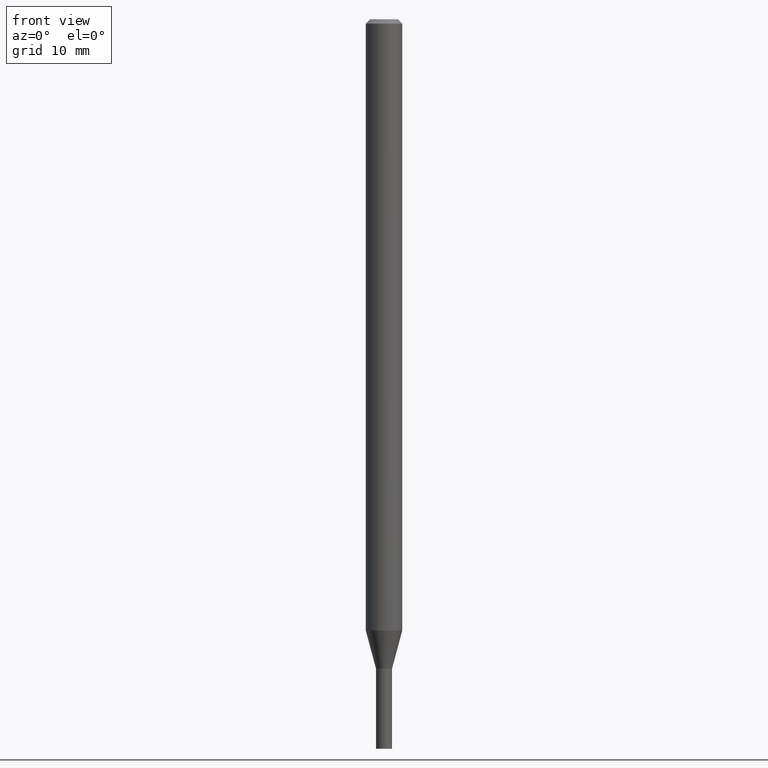
[diagram: clean part render]
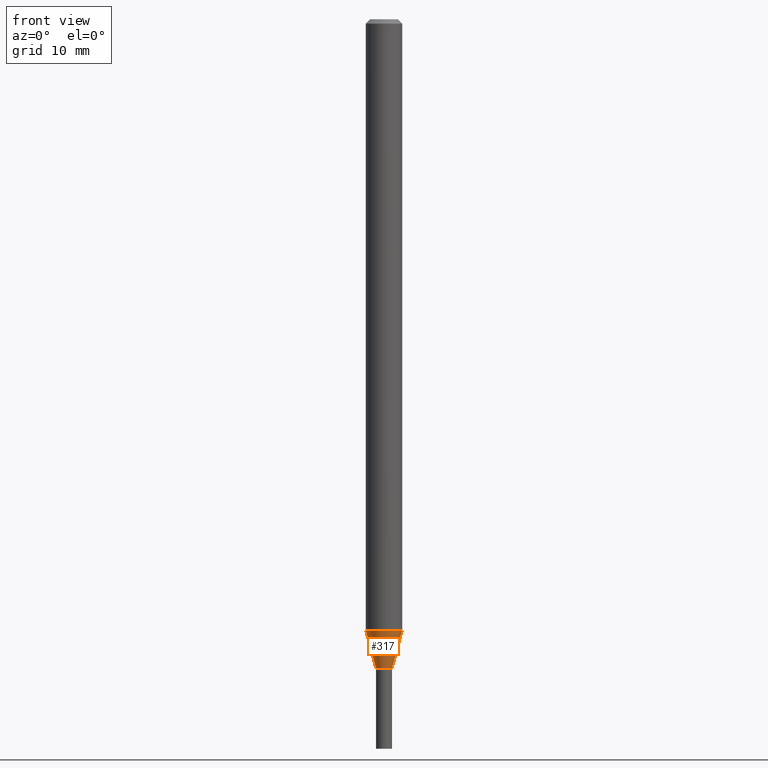
[diagram: same view with one face highlighted and labeled with its STEP entity id]
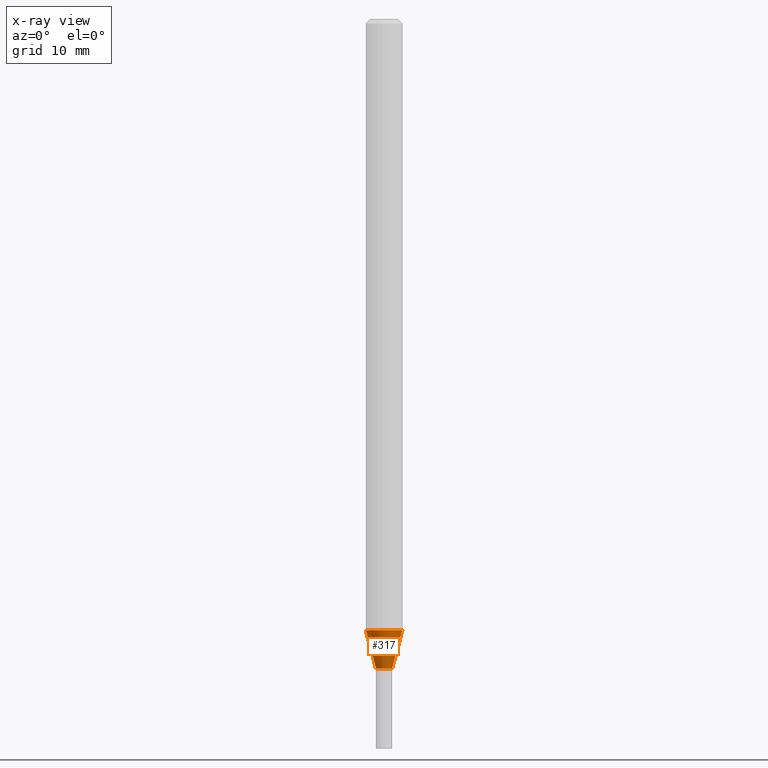
[diagram: x-ray of the same camera — body ghosted, the highlighted face saturated]
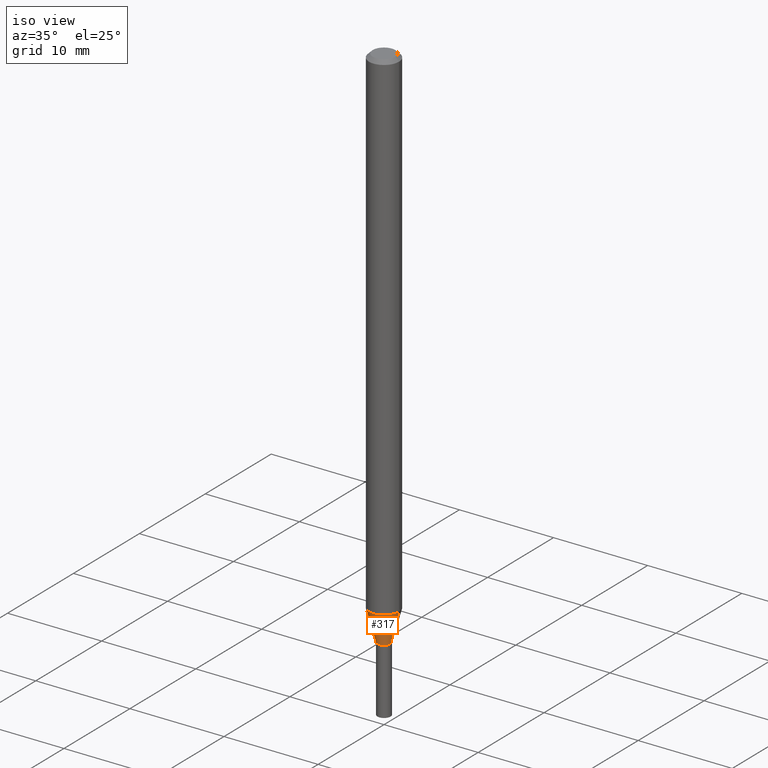
[diagram: same view with one face highlighted and labeled with its STEP entity id]
A machine part, front view. The second image highlights one B-rep face of the part: STEP entity #317.
The next image is the same camera in x-ray: the body ghosted, the highlighted face saturated — about 0% of this face is hidden behind the body in this view.
A second angle (iso view) of the same face is appended — the face is thin or edge-on in the first view.
In plain terms, the highlighted conical surface has half-angle 15 deg.
Its self-contained STEP definition (entity closure, byte-faithful):
#5 = VERTEX_POINT ( 'NONE', #451 ) ;
#15 = CARTESIAN_POINT ( 'NONE',  ( 0.02750000000000019790, -7.960577452562373396E-15, -2.225000000000000089 ) ) ;
#22 = ORIENTED_EDGE ( 'NONE', *, *, #237, .T. ) ;
#29 = AXIS2_PLACEMENT_3D ( 'NONE', #410, #79, #374 ) ;
#30 = CARTESIAN_POINT ( 'NONE',  ( -0.02750000000000019790, -7.573146726591970418E-15, -2.225000000000000089 ) ) ;
#35 = EDGE_CURVE ( 'NONE', #5, #403, #234, .T. ) ;
#54 = ORIENTED_EDGE ( 'NONE', *, *, #35, .T. ) ;
#55 = FACE_OUTER_BOUND ( 'NONE', #179, .T. ) ;
#65 = CIRCLE ( 'NONE', #176, 0.02750000000000019790 ) ;
#73 = VERTEX_POINT ( 'NONE', #139 ) ;
#79 = DIRECTION ( 'NONE',  ( -2.445468806185136597E-29, 3.491481338843145583E-15, 1.000000000000000000 ) ) ;
#105 = AXIS2_PLACEMENT_3D ( 'NONE', #376, #307, #172 ) ;
#118 = CARTESIAN_POINT ( 'NONE',  ( 0.06250000000000000000, -7.748917645022951248E-15, -2.094378221735090584 ) ) ;
#134 = DIRECTION ( 'NONE',  ( 1.000000000000000000, -6.982962677686265133E-15, 0.000000000000000000 ) ) ;
#138 = VECTOR ( 'NONE', #173, 39.37007874015747433 ) ;
#139 = CARTESIAN_POINT ( 'NONE',  ( -0.02750000000000019790, -7.220769997204734479E-15, -2.225000000000000089 ) ) ;
#172 = DIRECTION ( 'NONE',  ( 1.000000000000000000, -6.982962677686265133E-15, 0.000000000000000000 ) ) ;
#173 = DIRECTION ( 'NONE',  ( -0.2588190451025213501, 5.211531920934551042E-15, 0.9659258262890682012 ) ) ;
#174 = CARTESIAN_POINT ( 'NONE',  ( 5.441168093761929600E-29, -7.768545978925998537E-15, -2.225000000000000089 ) ) ;
#176 = AXIS2_PLACEMENT_3D ( 'NONE', #174, #314, #134 ) ;
#179 = EDGE_LOOP ( 'NONE', ( #300, #22, #54, #219 ) ) ;
#188 = DIRECTION ( 'NONE',  ( 0.2588190451025213501, 1.565188264969621968E-15, 0.9659258262890682012 ) ) ;
#217 = CARTESIAN_POINT ( 'NONE',  ( -0.06250000000000000000, -6.868393267817497752E-15, -2.094378221735090584 ) ) ;
#218 = EDGE_CURVE ( 'NONE', #73, #439, #350, .T. ) ;
#219 = ORIENTED_EDGE ( 'NONE', *, *, #406, .F. ) ;
#220 = CIRCLE ( 'NONE', #29, 0.06250000000000000000 ) ;
#234 = LINE ( 'NONE', #15, #385 ) ;
#237 = EDGE_CURVE ( 'NONE', #73, #5, #65, .T. ) ;
#297 = CONICAL_SURFACE ( 'NONE', #105, 0.02750000000000019790, 0.2617993877991500740 ) ;
#300 = ORIENTED_EDGE ( 'NONE', *, *, #218, .F. ) ;
#307 = DIRECTION ( 'NONE',  ( -2.445468806185136597E-29, 3.491481338843145583E-15, 1.000000000000000000 ) ) ;
#314 = DIRECTION ( 'NONE',  ( -2.445468806185136597E-29, 3.491481338843145583E-15, 1.000000000000000000 ) ) ;
#317 = ADVANCED_FACE ( 'NONE', ( #55 ), #297, .T. ) ;
#350 = LINE ( 'NONE', #30, #138 ) ;
#374 = DIRECTION ( 'NONE',  ( 1.000000000000000000, -6.982962677686262766E-15, 0.000000000000000000 ) ) ;
#376 = CARTESIAN_POINT ( 'NONE',  ( 5.441168093761929600E-29, -7.768545978925998537E-15, -2.225000000000000089 ) ) ;
#385 = VECTOR ( 'NONE', #188, 39.37007874015747433 ) ;
#403 = VERTEX_POINT ( 'NONE', #118 ) ;
#406 = EDGE_CURVE ( 'NONE', #439, #403, #220, .T. ) ;
#410 = CARTESIAN_POINT ( 'NONE',  ( 5.121736609606660644E-29, -7.312482477667559579E-15, -2.094378221735090584 ) ) ;
#439 = VERTEX_POINT ( 'NONE', #217 ) ;
#451 = CARTESIAN_POINT ( 'NONE',  ( 0.02750000000000019790, -7.960577452562373396E-15, -2.225000000000000089 ) ) ;